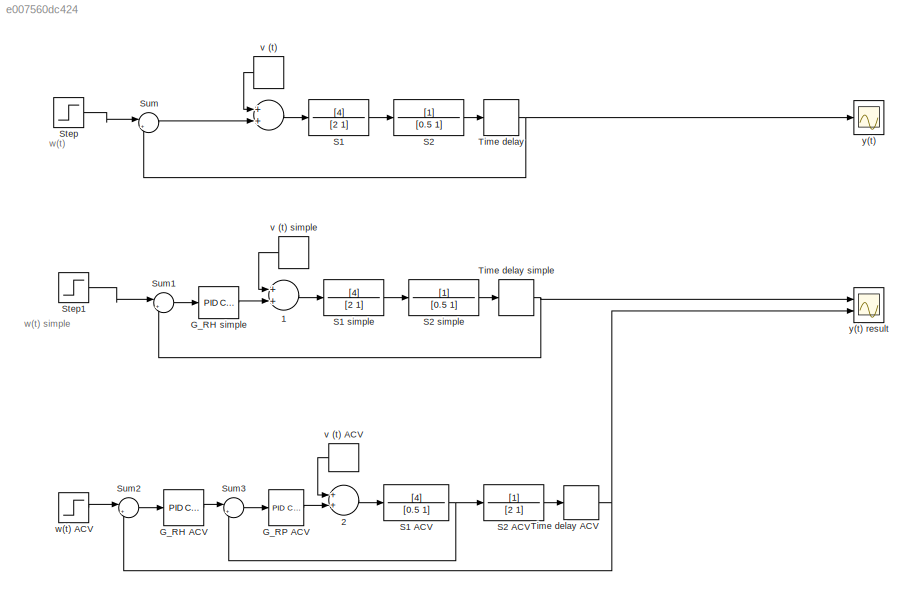
MODEL slx_e007560dc424
KIND model
CONFIG AbsTol = auto
CONFIG EnableMultiTasking = off
CONFIG FixedStep = auto
CONFIG MaxStep = auto
CONFIG MinStep = auto
CONFIG RelTol = 1e-3
CONFIG SampleTimeConstraint = Unconstrained
CONFIG Solver = VariableStepAuto
CONFIG SolverName = VariableStepAuto
CONFIG StartTime = 0.0
CONFIG StopTime = 150
BLOCK [Sum]  
  InputSameDT = off
  OutDataTypeStr = Inherit: Inherit via internal rule
  Ports = [2, 1]
  SaturateOnIntegerOverflow = off
BLOCK [Sum]  1
  InputSameDT = off
  OutDataTypeStr = Inherit: Inherit via internal rule
  Ports = [2, 1]
  SaturateOnIntegerOverflow = off
BLOCK [Sum]  2
  InputSameDT = off
  OutDataTypeStr = Inherit: Inherit via internal rule
  Ports = [2, 1]
  SaturateOnIntegerOverflow = off
BLOCK [Reference] G_RH ACV  REF=simulink/Continuous/PID Controller
  Ports = [1, 1]
  SourceBlock = simulink/Continuous/PID Controller
  SourceProductBaseCode = SL
  SourceProductName = Simulink
  SourceType = PID 1dof
BLOCK [Reference] G_RH simple  REF=simulink/Continuous/PID Controller
  Ports = [1, 1]
  SourceBlock = simulink/Continuous/PID Controller
  SourceProductBaseCode = SL
  SourceProductName = Simulink
  SourceType = PID 1dof
BLOCK [Reference] G_RP ACV  REF=simulink/Continuous/PID Controller
  Ports = [1, 1]
  SourceBlock = simulink/Continuous/PID Controller
  SourceProductBaseCode = SL
  SourceProductName = Simulink
  SourceType = PID 1dof
BLOCK [TransferFcn] S1
  Denominator = [2 1]
  Numerator = [4]
BLOCK [TransferFcn] S1 ACV
  Denominator = [0.5 1]
  Numerator = [4]
BLOCK [TransferFcn] S1 simple
  Denominator = [2 1]
  Numerator = [4]
BLOCK [TransferFcn] S2
  Denominator = [0.5 1]
BLOCK [TransferFcn] S2 ACV
  Denominator = [2 1]
BLOCK [TransferFcn] S2 simple
  Denominator = [0.5 1]
BLOCK [Step] Step
  SampleTime = 0
BLOCK [Step] Step1
  SampleTime = 0
BLOCK [Sum] Sum
  IconShape = round
  InputSameDT = off
  Inputs = |+-
  OutDataTypeStr = Inherit: Inherit via internal rule
  Ports = [2, 1]
  SaturateOnIntegerOverflow = off
BLOCK [Sum] Sum1
  IconShape = round
  InputSameDT = off
  Inputs = |+-
  OutDataTypeStr = Inherit: Inherit via internal rule
  Ports = [2, 1]
  SaturateOnIntegerOverflow = off
BLOCK [Sum] Sum2
  IconShape = round
  InputSameDT = off
  Inputs = |+-
  OutDataTypeStr = Inherit: Inherit via internal rule
  Ports = [2, 1]
  SaturateOnIntegerOverflow = off
BLOCK [Sum] Sum3
  IconShape = round
  InputSameDT = off
  Inputs = |+-
  OutDataTypeStr = Inherit: Inherit via internal rule
  Ports = [2, 1]
  SaturateOnIntegerOverflow = off
BLOCK [TransportDelay] Time delay
  DelayTime = 4
  Ports = [1, 1]
BLOCK [TransportDelay] Time delay ACV
  DelayTime = 4
  Ports = [1, 1]
BLOCK [TransportDelay] Time delay simple
  DelayTime = 4
  Ports = [1, 1]
BLOCK [DiscretePulseGenerator] v (t)
  Amplitude = 0.5
  Period = 100
  PhaseDelay = 60
  Ports = [0, 1]
  PulseType = Time based
BLOCK [DiscretePulseGenerator] v (t) ACV
  Amplitude = 0.5
  Period = 100
  PhaseDelay = 60
  Ports = [0, 1]
  PulseType = Time based
BLOCK [DiscretePulseGenerator] v (t) simple
  Amplitude = 0.5
  Period = 100
  PhaseDelay = 60
  Ports = [0, 1]
  PulseType = Time based
BLOCK [Step] w(t) ACV
  SampleTime = 0
BLOCK [Scope] y(t)
  Floating = off
  NumInputPorts = 1
  Ports = [1]
  ScopeSpecificationString = Simulink.scopes.TimeScopeBlockCfg('CurrentConfiguration', extmgr.ConfigurationSet(extmgr.Configuration('Core','General UI',true),extmgr.Configuration('Core','Source UI',true),extmgr.Configuration('Sources','WiredSimulink',true),extmgr.Configuration('Visuals','Time Domain',true,'SerializedDisplays',{struct('MinYLimReal','-0.19102','MaxYLimReal','10000000000000','YLabelReal','','MinYLimMag','0.00000...<+1450ch>
BLOCK [Scope] y(t) result 
  Floating = off
  NumInputPorts = 2
  Ports = [2]
  ScopeSpecificationString = Simulink.scopes.TimeScopeBlockCfg('CurrentConfiguration', extmgr.ConfigurationSet(extmgr.Configuration('Core','General UI',true),extmgr.Configuration('Core','Source UI',true),extmgr.Configuration('Sources','WiredSimulink',true,'DataLoggingVariableName','ScopeData1'),extmgr.Configuration('Visuals','Time Domain',true,'SerializedDisplays',{struct('MinYLimReal','-0.19102','MaxYLimReal','1.71919','YLab...<+1520ch>
ANNOTATION (root): w(t)
ANNOTATION (root): w(t) simple
LINE  1:1 -> S1 simple:1
LINE  2:1 -> S1 ACV:1
LINE  :1 -> S1:1
LINE G_RH ACV:1 -> Sum3:1
LINE G_RH simple:1 ->  1:2
LINE G_RP ACV:1 ->  2:2
NET S1 ACV:1 -> S2 ACV:1, Sum3:2
LINE S1 simple:1 -> S2 simple:1
LINE S1:1 -> S2:1
LINE S2 ACV:1 -> Time delay ACV:1
LINE S2 simple:1 -> Time delay simple:1
LINE S2:1 -> Time delay:1
LINE Step1:1 -> Sum1:1
LINE Step:1 -> Sum:1
LINE Sum1:1 -> G_RH simple:1
LINE Sum2:1 -> G_RH ACV:1
LINE Sum3:1 -> G_RP ACV:1
LINE Sum:1 ->  :2
NET Time delay ACV:1 -> Sum2:2, y(t) result :2
NET Time delay simple:1 -> Sum1:2, y(t) result :1
NET Time delay:1 -> Sum:2, y(t):1
LINE v (t) ACV:1 ->  2:1
LINE v (t) simple:1 ->  1:1
LINE v (t):1 ->  :1
LINE w(t) ACV:1 -> Sum2:1
note: NET lines group one-source signal fan-out (src -> all destinations, sorted); 1:1 wires keep LINE
